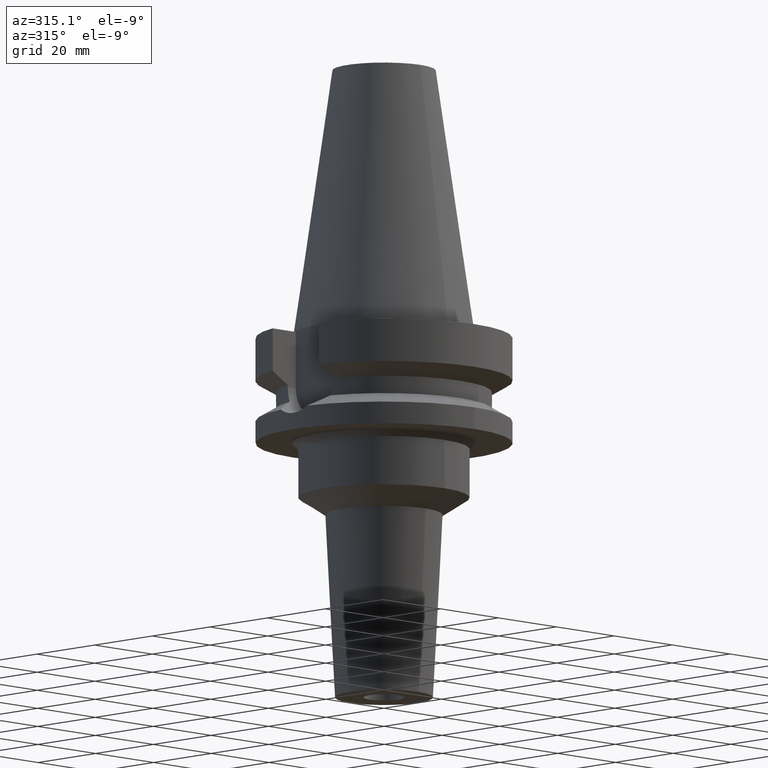
[diagram: clean part render]
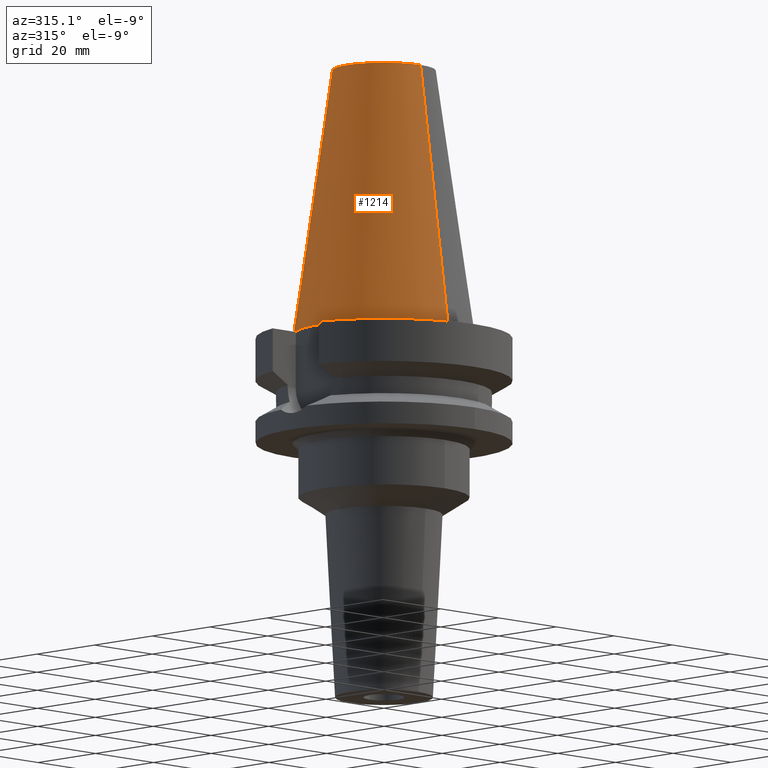
[diagram: same view with one face highlighted and labeled with its STEP entity id]
A machine part, auxiliary view. The second image highlights one B-rep face of the part: STEP entity #1214.
In plain terms, the highlighted conical surface has half-angle 8.297 deg.
Its self-contained STEP definition (entity closure, byte-faithful):
#17=CARTESIAN_POINT('',(0.E0,1.625106302469E-14,6.54E1));
#18=DIRECTION('',(0.E0,0.E0,-1.E0));
#19=DIRECTION('',(0.E0,-1.E0,0.E0));
#20=AXIS2_PLACEMENT_3D('',#17,#18,#19);
#50=DIRECTION('',(0.E0,-1.443043893540E-1,-9.895333461856E-1));
#51=VECTOR('',#50,6.609175956738E1);
#52=CARTESIAN_POINT('',(0.E0,-1.268766899430E1,6.54E1));
#53=LINE('',#52,#51);
#57=CARTESIAN_POINT('',(0.E0,1.625106302469E-14,2.842170943040E-14));
#58=DIRECTION('',(0.E0,0.E0,-1.E0));
#59=DIRECTION('',(0.E0,-1.E0,0.E0));
#60=AXIS2_PLACEMENT_3D('',#57,#58,#59);
#65=DIRECTION('',(0.E0,1.443043893540E-1,-9.895333461856E-1));
#66=VECTOR('',#65,6.609175956738E1);
#67=CARTESIAN_POINT('',(0.E0,1.268766899430E1,6.54E1));
#68=LINE('',#67,#66);
#1025=CARTESIAN_POINT('',(0.E0,-1.268766899430E1,6.54E1));
#1026=CARTESIAN_POINT('',(0.E0,1.268766899430E1,6.54E1));
#1027=VERTEX_POINT('',#1025);
#1028=VERTEX_POINT('',#1026);
#1170=CARTESIAN_POINT('',(0.E0,2.2225E1,6.394884621841E-14));
#1171=VERTEX_POINT('',#1170);
#1172=CARTESIAN_POINT('',(0.E0,-2.2225E1,6.394884621841E-14));
#1173=VERTEX_POINT('',#1172);
#1200=CARTESIAN_POINT('',(0.E0,1.625106302469E-14,3.27E1));
#1201=DIRECTION('',(0.E0,0.E0,-1.E0));
#1202=DIRECTION('',(0.E0,-1.E0,0.E0));
#1203=AXIS2_PLACEMENT_3D('',#1200,#1201,#1202);
#1204=CONICAL_SURFACE('',#1203,1.745633449715E1,8.297E0);
#1206=ORIENTED_EDGE('',*,*,#1205,.F.);
#1207=ORIENTED_EDGE('',*,*,#1187,.F.);
#1209=ORIENTED_EDGE('',*,*,#1208,.T.);
#1211=ORIENTED_EDGE('',*,*,#1210,.T.);
#1212=EDGE_LOOP('',(#1206,#1207,#1209,#1211));
#1213=FACE_OUTER_BOUND('',#1212,.F.);
#21=CIRCLE('',#20,1.268766899430E1);
#61=CIRCLE('',#60,2.2225E1);
#1187=EDGE_CURVE('',#1027,#1028,#21,.T.);
#1205=EDGE_CURVE('',#1028,#1171,#68,.T.);
#1208=EDGE_CURVE('',#1027,#1173,#53,.T.);
#1210=EDGE_CURVE('',#1173,#1171,#61,.T.);
#1214=ADVANCED_FACE('',(#1213),#1204,.T.);